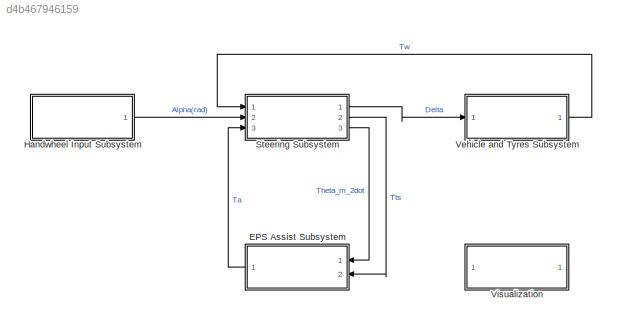
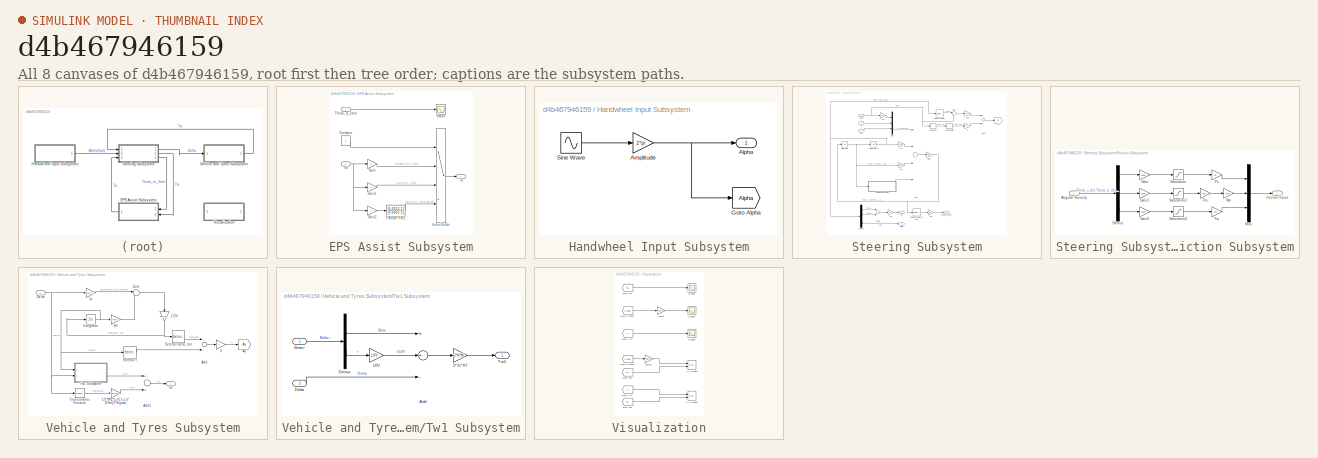
[diagram: thumbnail index - all 8 canvases of the model, root first then tree order]
MODEL slx_d4b467946159
KIND model
BLOCK [SubSystem] EPS Assist Subsystem
  Ports = [2, 1]
  RequestExecContextInheritance = off
BLOCK [Constant] EPS Assist Subsystem/Constant
  Value = 3
BLOCK [Gain] EPS Assist Subsystem/Gain
  Gain = 0
  OutDataTypeStr = Inherit: Inherit via internal rule
  ParamDataTypeStr = Inherit: Inherit via internal rule
  SaturateOnIntegerOverflow = off
BLOCK [Gain] EPS Assist Subsystem/Gain1
  Gain = 3
  OutDataTypeStr = Inherit: Inherit via internal rule
  ParamDataTypeStr = Inherit: Inherit via internal rule
  SaturateOnIntegerOverflow = off
BLOCK [Gain] EPS Assist Subsystem/Gain2
  Gain = 3
  OutDataTypeStr = Inherit: Inherit via internal rule
  ParamDataTypeStr = Inherit: Inherit via internal rule
  SaturateOnIntegerOverflow = off
BLOCK [MultiPortSwitch] EPS Assist Subsystem/Index Vector
  InputSameDT = off
  Ports = [4, 1]
  SaturateOnIntegerOverflow = off
BLOCK [Scope] EPS Assist Subsystem/Scope
  Floating = off
  NumInputPorts = 1
  Ports = [1]
  ShowLegends = off
BLOCK [Outport] EPS Assist Subsystem/Ta
  IconDisplay = Port number
BLOCK [Inport] EPS Assist Subsystem/Theta_m_2dot
  IconDisplay = Port number
BLOCK [TransferFcn] EPS Assist Subsystem/Transfer Fcn1
  Denominator = [0.0061 1]
  Numerator = [0.0255 1]
BLOCK [Inport] EPS Assist Subsystem/Tts
  IconDisplay = Port number
  Port = 2
BLOCK [SubSystem] Handwheel Input Subsystem
  Ports = [0, 1]
  RequestExecContextInheritance = off
BLOCK [Outport] Handwheel Input Subsystem/Alpha
  IconDisplay = Port number
BLOCK [Gain] Handwheel Input Subsystem/Amplitude
  Gain = 2*pi
  OutDataTypeStr = Inherit: Inherit via internal rule
  ParamDataTypeStr = Inherit: Inherit via internal rule
  SaturateOnIntegerOverflow = off
BLOCK [Goto] Handwheel Input Subsystem/Goto Alpha
  GotoTag = Alpha
  TagVisibility = global
BLOCK [Sin] Handwheel Input Subsystem/Sine Wave
  Ports = [0, 1]
  SampleTime = 0
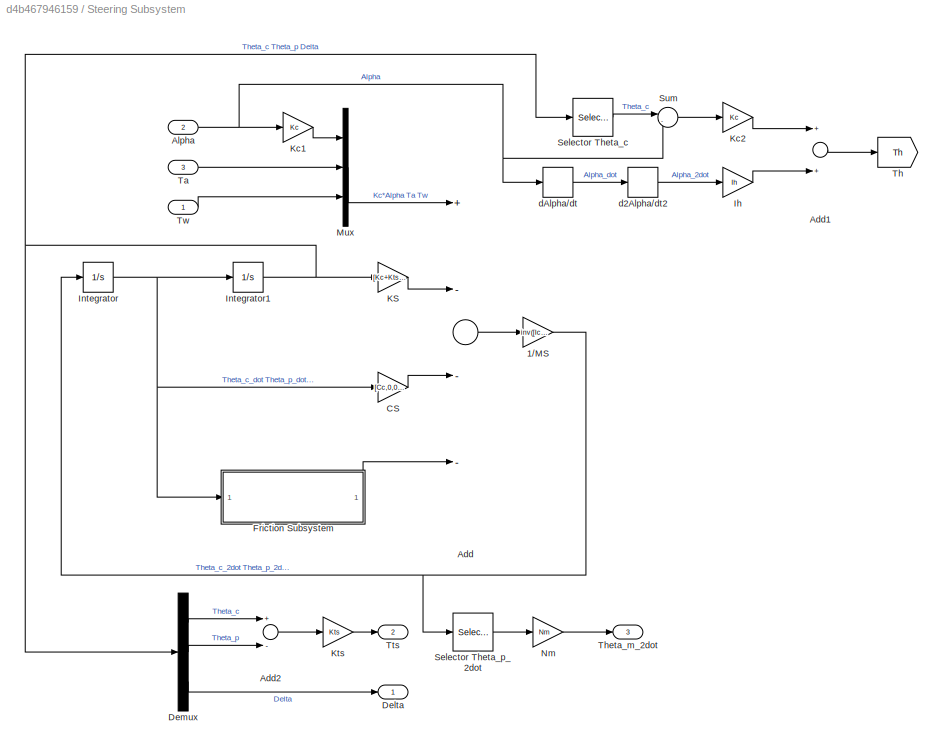
BLOCK [SubSystem] Steering Subsystem
  Ports = [3, 3]
  RequestExecContextInheritance = off
BLOCK [Gain] Steering Subsystem/1//MS
  Gain = inv([Ic,0,0;0,Nm^2*Im,0;0,0,Iw])
  Multiplication = Matrix(K*u)
  OutDataTypeStr = Inherit: Inherit via internal rule
  ParamDataTypeStr = Inherit: Inherit via internal rule
  SaturateOnIntegerOverflow = off
BLOCK [Sum] Steering Subsystem/Add
  InputSameDT = off
  Inputs = +---
  OutDataTypeStr = Inherit: Inherit via internal rule
  Ports = [4, 1]
  SaturateOnIntegerOverflow = off
BLOCK [Sum] Steering Subsystem/Add1
  InputSameDT = off
  OutDataTypeStr = Inherit: Inherit via internal rule
  Ports = [2, 1]
  SaturateOnIntegerOverflow = off
BLOCK [Sum] Steering Subsystem/Add2
  InputSameDT = off
  Inputs = +-
  OutDataTypeStr = Inherit: Inherit via internal rule
  Ports = [2, 1]
  SaturateOnIntegerOverflow = off
BLOCK [Inport] Steering Subsystem/Alpha
  IconDisplay = Port number
  Port = 2
BLOCK [Gain] Steering Subsystem/CS
  Gain = [Cc,0,0;0,Nm^2*Cm,0;0,0,Cw]
  Multiplication = Matrix(K*u)
  OutDataTypeStr = Inherit: Inherit via internal rule
  ParamDataTypeStr = Inherit: Inherit via internal rule
  SaturateOnIntegerOverflow = off
BLOCK [Outport] Steering Subsystem/Delta
  IconDisplay = Port number
BLOCK [Demux] Steering Subsystem/Demux
  DisplayOption = bar
  Outputs = 3
  Ports = [1, 3]
BLOCK [SubSystem] Steering Subsystem/Friction Subsystem
  Ports = [1, 1]
  RequestExecContextInheritance = off
BLOCK [Inport] Steering Subsystem/Friction Subsystem/Angular Velocity
  IconDisplay = Port number
BLOCK [Demux] Steering Subsystem/Friction Subsystem/Demux
  DisplayOption = bar
  Outputs = 3
  Ports = [1, 3]
BLOCK [Gain] Steering Subsystem/Friction Subsystem/Fc
  Gain = Fc
  OutDataTypeStr = Inherit: Inherit via internal rule
  ParamDataTypeStr = Inherit: Inherit via internal rule
  SaturateOnIntegerOverflow = off
BLOCK [Gain] Steering Subsystem/Friction Subsystem/Fm
  Gain = Fm
  OutDataTypeStr = Inherit: Inherit via internal rule
  ParamDataTypeStr = Inherit: Inherit via internal rule
  SaturateOnIntegerOverflow = off
BLOCK [Outport] Steering Subsystem/Friction Subsystem/Friction Force
  IconDisplay = Port number
BLOCK [Gain] Steering Subsystem/Friction Subsystem/Fw
  Gain = Fw
  OutDataTypeStr = Inherit: Inherit via internal rule
  ParamDataTypeStr = Inherit: Inherit via internal rule
  SaturateOnIntegerOverflow = off
BLOCK [Gain] Steering Subsystem/Friction Subsystem/Gain
  Gain = 1000
  OutDataTypeStr = Inherit: Inherit via internal rule
  ParamDataTypeStr = Inherit: Inherit via internal rule
  SaturateOnIntegerOverflow = off
BLOCK [Gain] Steering Subsystem/Friction Subsystem/Gain1
  Gain = 1000
  OutDataTypeStr = Inherit: Inherit via internal rule
  ParamDataTypeStr = Inherit: Inherit via internal rule
  SaturateOnIntegerOverflow = off
BLOCK [Gain] Steering Subsystem/Friction Subsystem/Gain2
  Gain = 1000
  OutDataTypeStr = Inherit: Inherit via internal rule
  ParamDataTypeStr = Inherit: Inherit via internal rule
  SaturateOnIntegerOverflow = off
BLOCK [Mux] Steering Subsystem/Friction Subsystem/Mux
  DisplayOption = bar
  Inputs = 3
  Ports = [3, 1]
BLOCK [Gain] Steering Subsystem/Friction Subsystem/Nm
  Gain = Nm
  OutDataTypeStr = Inherit: Inherit via internal rule
  ParamDataTypeStr = Inherit: Inherit via internal rule
  SaturateOnIntegerOverflow = off
BLOCK [Saturate] Steering Subsystem/Friction Subsystem/Saturation
  InputPortMap = u0
  LowerLimit = -1
  Ports = [1, 1]
  UpperLimit = 1
BLOCK [Saturate] Steering Subsystem/Friction Subsystem/Saturation1
  InputPortMap = u0
  LowerLimit = -1
  Ports = [1, 1]
  UpperLimit = 1
BLOCK [Saturate] Steering Subsystem/Friction Subsystem/Saturation2
  InputPortMap = u0
  LowerLimit = -1
  Ports = [1, 1]
  UpperLimit = 1
BLOCK [Gain] Steering Subsystem/Ih
  Gain = Ih
  OutDataTypeStr = Inherit: Inherit via internal rule
  ParamDataTypeStr = Inherit: Inherit via internal rule
  SaturateOnIntegerOverflow = off
BLOCK [Integrator] Steering Subsystem/Integrator
  Ports = [1, 1]
BLOCK [Integrator] Steering Subsystem/Integrator1
  Ports = [1, 1]
BLOCK [Gain] Steering Subsystem/KS
  Gain = [Kc+Kts,-Kts,0;-Kts,Kts+Kg/Ng^2,-Kg/Ng;0,-Kg/Ng,Kg]
  Multiplication = Matrix(K*u)
  OutDataTypeStr = Inherit: Inherit via internal rule
  ParamDataTypeStr = Inherit: Inherit via internal rule
  SaturateOnIntegerOverflow = off
BLOCK [Gain] Steering Subsystem/Kc1
  Gain = Kc
  OutDataTypeStr = Inherit: Inherit via internal rule
  ParamDataTypeStr = Inherit: Inherit via internal rule
  SaturateOnIntegerOverflow = off
BLOCK [Gain] Steering Subsystem/Kc2
  Gain = Kc
  OutDataTypeStr = Inherit: Inherit via internal rule
  ParamDataTypeStr = Inherit: Inherit via internal rule
  SaturateOnIntegerOverflow = off
BLOCK [Gain] Steering Subsystem/Kts
  Gain = Kts
  OutDataTypeStr = Inherit: Inherit via internal rule
  ParamDataTypeStr = Inherit: Inherit via internal rule
  SaturateOnIntegerOverflow = off
BLOCK [Mux] Steering Subsystem/Mux
  DisplayOption = bar
  Inputs = 3
  Ports = [3, 1]
BLOCK [Gain] Steering Subsystem/Nm
  Gain = Nm
  OutDataTypeStr = Inherit: Inherit via internal rule
  ParamDataTypeStr = Inherit: Inherit via internal rule
  SaturateOnIntegerOverflow = off
BLOCK [Selector] Steering Subsystem/Selector Theta_c
  Indices = [1]
  InputPortWidth = 3
  Ports = [1, 1]
BLOCK [Selector] Steering Subsystem/Selector Theta_p_2dot
  Indices = [2]
  InputPortWidth = 3
  Ports = [1, 1]
BLOCK [Sum] Steering Subsystem/Sum
  IconShape = round
  InputSameDT = off
  Inputs = |-+
  OutDataTypeStr = Inherit: Inherit via internal rule
  Ports = [2, 1]
  SaturateOnIntegerOverflow = off
BLOCK [Inport] Steering Subsystem/Ta
  IconDisplay = Port number
  Port = 3
BLOCK [Goto] Steering Subsystem/Th
  GotoTag = Th
  TagVisibility = global
BLOCK [Outport] Steering Subsystem/Theta_m_2dot
  IconDisplay = Port number
  Port = 3
BLOCK [Outport] Steering Subsystem/Tts
  IconDisplay = Port number
  Port = 2
BLOCK [Inport] Steering Subsystem/Tw
  IconDisplay = Port number
BLOCK [Derivative] Steering Subsystem/d2Alpha//dt2
BLOCK [Derivative] Steering Subsystem/dAlpha//dt
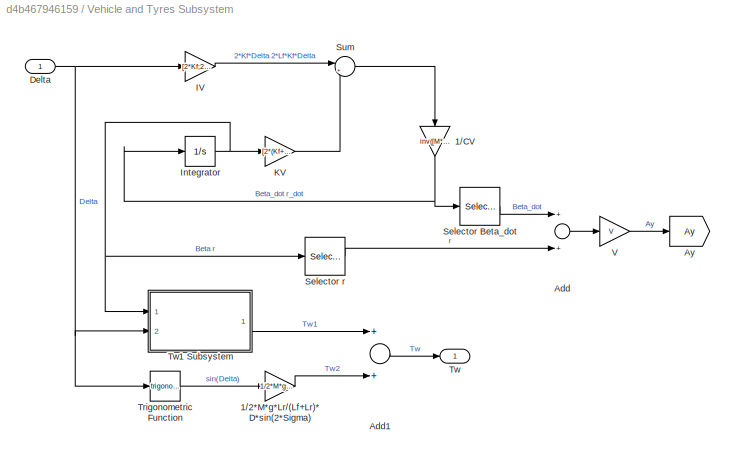
BLOCK [SubSystem] Vehicle and Tyres Subsystem
  Ports = [1, 1]
  RequestExecContextInheritance = off
BLOCK [Gain] Vehicle and Tyres Subsystem/1//2*M*g*Lr//(Lf+Lr)*D*sin(2*Sigma)
  Gain = 1/2*M*g*Lr/(Lf+Lr)*D*sin(2*sigma)
  OutDataTypeStr = Inherit: Inherit via internal rule
  ParamDataTypeStr = Inherit: Inherit via internal rule
  SaturateOnIntegerOverflow = off
BLOCK [Gain] Vehicle and Tyres Subsystem/1//CV
  Gain = inv([M*V,0;0,I])
  Multiplication = Matrix(K*u)
  OutDataTypeStr = Inherit: Inherit via internal rule
  ParamDataTypeStr = Inherit: Inherit via internal rule
  SaturateOnIntegerOverflow = off
BLOCK [Sum] Vehicle and Tyres Subsystem/Add
  InputSameDT = off
  OutDataTypeStr = Inherit: Inherit via internal rule
  Ports = [2, 1]
  SaturateOnIntegerOverflow = off
BLOCK [Sum] Vehicle and Tyres Subsystem/Add1
  InputSameDT = off
  OutDataTypeStr = Inherit: Inherit via internal rule
  Ports = [2, 1]
  SaturateOnIntegerOverflow = off
BLOCK [Goto] Vehicle and Tyres Subsystem/Ay
  GotoTag = Ay
  TagVisibility = global
BLOCK [Inport] Vehicle and Tyres Subsystem/Delta
  IconDisplay = Port number
BLOCK [Gain] Vehicle and Tyres Subsystem/IV
  Gain = [2*Kf;2*Lf*Kf]
  Multiplication = Matrix(K*u)
  OutDataTypeStr = Inherit: Inherit via internal rule
  ParamDataTypeStr = Inherit: Inherit via internal rule
  SaturateOnIntegerOverflow = off
BLOCK [Integrator] Vehicle and Tyres Subsystem/Integrator
  Ports = [1, 1]
BLOCK [Gain] Vehicle and Tyres Subsystem/KV
  Gain = [2*(Kf+Kr),M*V+2*(Lf*Kf-Lr*Kr)/V;2*(Lf*Kf-Lr*Kr),2*(Lf^2*Kf+Lr^2*Kr)/V]
  Multiplication = Matrix(K*u)
  OutDataTypeStr = Inherit: Inherit via internal rule
  ParamDataTypeStr = Inherit: Inherit via internal rule
  SaturateOnIntegerOverflow = off
BLOCK [Selector] Vehicle and Tyres Subsystem/Selector Beta_dot
  Indices = [1]
  InputPortWidth = 2
  Ports = [1, 1]
BLOCK [Selector] Vehicle and Tyres Subsystem/Selector r
  Indices = [2]
  InputPortWidth = 2
  Ports = [1, 1]
BLOCK [Sum] Vehicle and Tyres Subsystem/Sum
  IconShape = round
  InputSameDT = off
  Inputs = |+-
  OutDataTypeStr = Inherit: Inherit via internal rule
  Ports = [2, 1]
  SaturateOnIntegerOverflow = off
BLOCK [Trigonometry] Vehicle and Tyres Subsystem/Trigonometric Function
  Ports = [1, 1]
BLOCK [Outport] Vehicle and Tyres Subsystem/Tw
  IconDisplay = Port number
BLOCK [SubSystem] Vehicle and Tyres Subsystem/Tw1 Subsystem
  Ports = [2, 1]
  RequestExecContextInheritance = off
BLOCK [Gain] Vehicle and Tyres Subsystem/Tw1 Subsystem/2*Xi*Kf
  Gain = 2*Xi*Kf
  OutDataTypeStr = Inherit: Inherit via internal rule
  ParamDataTypeStr = Inherit: Inherit via internal rule
  SaturateOnIntegerOverflow = off
BLOCK [Sum] Vehicle and Tyres Subsystem/Tw1 Subsystem/Add
  InputSameDT = off
  Inputs = ++-
  OutDataTypeStr = Inherit: Inherit via internal rule
  Ports = [3, 1]
  SaturateOnIntegerOverflow = off
BLOCK [Inport] Vehicle and Tyres Subsystem/Tw1 Subsystem/Beta r
  IconDisplay = Port number
BLOCK [Inport] Vehicle and Tyres Subsystem/Tw1 Subsystem/Delta
  IconDisplay = Port number
  Port = 2
BLOCK [Demux] Vehicle and Tyres Subsystem/Tw1 Subsystem/Demux
  DisplayOption = bar
  Outputs = 2
  Ports = [1, 2]
BLOCK [Gain] Vehicle and Tyres Subsystem/Tw1 Subsystem/Lf//V
  Gain = Lf/V
  OutDataTypeStr = Inherit: Inherit via internal rule
  ParamDataTypeStr = Inherit: Inherit via internal rule
  SaturateOnIntegerOverflow = off
BLOCK [Outport] Vehicle and Tyres Subsystem/Tw1 Subsystem/Tw1
  IconDisplay = Port number
BLOCK [Gain] Vehicle and Tyres Subsystem/V
  Gain = V
  OutDataTypeStr = Inherit: Inherit via internal rule
  ParamDataTypeStr = Inherit: Inherit via internal rule
  SaturateOnIntegerOverflow = off
BLOCK [SubSystem] Visualization
  Ports = []
  RequestExecContextInheritance = off
BLOCK [Gain] Visualization/180//pi
  Gain = 180/pi
  OutDataTypeStr = Inherit: Inherit via internal rule
  ParamDataTypeStr = Inherit: Inherit via internal rule
  SaturateOnIntegerOverflow = off
BLOCK [Gain] Visualization/180//pi1
  Gain = 180/pi
  OutDataTypeStr = Inherit: Inherit via internal rule
  ParamDataTypeStr = Inherit: Inherit via internal rule
  SaturateOnIntegerOverflow = off
BLOCK [From] Visualization/From Alpha1
  GotoTag = Alpha
  TagVisibility = global
BLOCK [From] Visualization/From Alpha2
  GotoTag = Alpha
  TagVisibility = global
BLOCK [From] Visualization/From Ay1
  GotoTag = Ay
  TagVisibility = global
BLOCK [From] Visualization/From Ay2
  GotoTag = Ay
  TagVisibility = global
BLOCK [From] Visualization/From Th1
  GotoTag = Th
  TagVisibility = global
BLOCK [From] Visualization/From Th2
  GotoTag = Th
  TagVisibility = global
BLOCK [From] Visualization/From Th3
  GotoTag = Th
  TagVisibility = global
BLOCK [Scope] Visualization/Scope
  Floating = off
  LimitDataPoints = off
  NumInputPorts = 1
  Ports = [1]
  SaveName = ScopeData1
  ShowLegends = off
  TimeRange = 10
  YMax = 1.29
  YMin = 1.16
BLOCK [Scope] Visualization/Scope1
  Floating = off
  LimitDataPoints = off
  NumInputPorts = 1
  Ports = [1]
  SaveName = ScopeData2
  ShowLegends = off
  YMax = 250
  YMin = -75
BLOCK [Scope] Visualization/Scope2
  Floating = off
  LimitDataPoints = off
  NumInputPorts = 1
  Ports = [1]
  SaveName = ScopeData3
  ShowLegends = off
  YMax = 3.75
  YMin = 0.5
BLOCK [Reference] Visualization/XY Graph  REF=simulink/Sinks/XY Graph
  Ports = [2]
  SourceBlock = simulink/Sinks/XY Graph
  SourceType = XY scope.
  st = -1
  xmax = 400
  xmin = -400
  ymax = 10
  ymin = -10
BLOCK [Reference] Visualization/XY Graph1  REF=simulink/Sinks/XY Graph
  Ports = [2]
  SourceBlock = simulink/Sinks/XY Graph
  SourceType = XY scope.
  st = -1
  xmax = 6
  xmin = -6
  ymax = 10
  ymin = -10
LINE EPS Assist Subsystem/Constant:1 -> EPS Assist Subsystem/Index Vector:1
LINE EPS Assist Subsystem/Gain1:1 -> EPS Assist Subsystem/Index Vector:3
LINE EPS Assist Subsystem/Gain2:1 -> EPS Assist Subsystem/Transfer Fcn1:1
LINE EPS Assist Subsystem/Gain:1 -> EPS Assist Subsystem/Index Vector:2
LINE EPS Assist Subsystem/Index Vector:1 -> EPS Assist Subsystem/Ta:1
LINE EPS Assist Subsystem/Theta_m_2dot:1 -> EPS Assist Subsystem/Scope:1
LINE EPS Assist Subsystem/Transfer Fcn1:1 -> EPS Assist Subsystem/Index Vector:4
NET EPS Assist Subsystem/Tts:1 -> EPS Assist Subsystem/Gain1:1, EPS Assist Subsystem/Gain2:1, EPS Assist Subsystem/Gain:1
LINE EPS Assist Subsystem:1 -> Steering Subsystem:3
NET Handwheel Input Subsystem/Amplitude:1 -> Handwheel Input Subsystem/Alpha:1, Handwheel Input Subsystem/Goto Alpha:1
LINE Handwheel Input Subsystem/Sine Wave:1 -> Handwheel Input Subsystem/Amplitude:1
LINE Handwheel Input Subsystem:1 -> Steering Subsystem:2
NET Steering Subsystem/1//MS:1 -> Steering Subsystem/Integrator:1, Steering Subsystem/Selector Theta_p_2dot:1
LINE Steering Subsystem/Add1:1 -> Steering Subsystem/Th:1
LINE Steering Subsystem/Add2:1 -> Steering Subsystem/Kts:1
LINE Steering Subsystem/Add:1 -> Steering Subsystem/1//MS:1
NET Steering Subsystem/Alpha:1 -> Steering Subsystem/Kc1:1, Steering Subsystem/Sum:2, Steering Subsystem/dAlpha//dt:1
LINE Steering Subsystem/CS:1 -> Steering Subsystem/Add:3
LINE Steering Subsystem/Demux:1 -> Steering Subsystem/Add2:1
LINE Steering Subsystem/Demux:2 -> Steering Subsystem/Add2:2
LINE Steering Subsystem/Demux:3 -> Steering Subsystem/Delta:1
LINE Steering Subsystem/Friction Subsystem/Angular Velocity:1 -> Steering Subsystem/Friction Subsystem/Demux:1
LINE Steering Subsystem/Friction Subsystem/Demux:1 -> Steering Subsystem/Friction Subsystem/Gain:1
LINE Steering Subsystem/Friction Subsystem/Demux:2 -> Steering Subsystem/Friction Subsystem/Gain1:1
LINE Steering Subsystem/Friction Subsystem/Demux:3 -> Steering Subsystem/Friction Subsystem/Gain2:1
LINE Steering Subsystem/Friction Subsystem/Fc:1 -> Steering Subsystem/Friction Subsystem/Mux:1
LINE Steering Subsystem/Friction Subsystem/Fm:1 -> Steering Subsystem/Friction Subsystem/Nm:1
LINE Steering Subsystem/Friction Subsystem/Fw:1 -> Steering Subsystem/Friction Subsystem/Mux:3
LINE Steering Subsystem/Friction Subsystem/Gain1:1 -> Steering Subsystem/Friction Subsystem/Saturation1:1
LINE Steering Subsystem/Friction Subsystem/Gain2:1 -> Steering Subsystem/Friction Subsystem/Saturation2:1
LINE Steering Subsystem/Friction Subsystem/Gain:1 -> Steering Subsystem/Friction Subsystem/Saturation:1
LINE Steering Subsystem/Friction Subsystem/Mux:1 -> Steering Subsystem/Friction Subsystem/Friction Force:1
LINE Steering Subsystem/Friction Subsystem/Nm:1 -> Steering Subsystem/Friction Subsystem/Mux:2
LINE Steering Subsystem/Friction Subsystem/Saturation1:1 -> Steering Subsystem/Friction Subsystem/Fm:1
LINE Steering Subsystem/Friction Subsystem/Saturation2:1 -> Steering Subsystem/Friction Subsystem/Fw:1
LINE Steering Subsystem/Friction Subsystem/Saturation:1 -> Steering Subsystem/Friction Subsystem/Fc:1
LINE Steering Subsystem/Friction Subsystem:1 -> Steering Subsystem/Add:4
LINE Steering Subsystem/Ih:1 -> Steering Subsystem/Add1:2
NET Steering Subsystem/Integrator1:1 -> Steering Subsystem/Demux:1, Steering Subsystem/KS:1, Steering Subsystem/Selector Theta_c:1
NET Steering Subsystem/Integrator:1 -> Steering Subsystem/CS:1, Steering Subsystem/Friction Subsystem:1, Steering Subsystem/Integrator1:1
LINE Steering Subsystem/KS:1 -> Steering Subsystem/Add:2
LINE Steering Subsystem/Kc1:1 -> Steering Subsystem/Mux:1
LINE Steering Subsystem/Kc2:1 -> Steering Subsystem/Add1:1
LINE Steering Subsystem/Kts:1 -> Steering Subsystem/Tts:1
LINE Steering Subsystem/Mux:1 -> Steering Subsystem/Add:1
LINE Steering Subsystem/Nm:1 -> Steering Subsystem/Theta_m_2dot:1
LINE Steering Subsystem/Selector Theta_c:1 -> Steering Subsystem/Sum:1
LINE Steering Subsystem/Selector Theta_p_2dot:1 -> Steering Subsystem/Nm:1
LINE Steering Subsystem/Sum:1 -> Steering Subsystem/Kc2:1
LINE Steering Subsystem/Ta:1 -> Steering Subsystem/Mux:2
LINE Steering Subsystem/Tw:1 -> Steering Subsystem/Mux:3
LINE Steering Subsystem/d2Alpha//dt2:1 -> Steering Subsystem/Ih:1
LINE Steering Subsystem/dAlpha//dt:1 -> Steering Subsystem/d2Alpha//dt2:1
LINE Steering Subsystem:1 -> Vehicle and Tyres Subsystem:1
LINE Steering Subsystem:2 -> EPS Assist Subsystem:2
LINE Steering Subsystem:3 -> EPS Assist Subsystem:1
LINE Vehicle and Tyres Subsystem/1//2*M*g*Lr//(Lf+Lr)*D*sin(2*Sigma):1 -> Vehicle and Tyres Subsystem/Add1:2
NET Vehicle and Tyres Subsystem/1//CV:1 -> Vehicle and Tyres Subsystem/Integrator:1, Vehicle and Tyres Subsystem/Selector Beta_dot:1
LINE Vehicle and Tyres Subsystem/Add1:1 -> Vehicle and Tyres Subsystem/Tw:1
LINE Vehicle and Tyres Subsystem/Add:1 -> Vehicle and Tyres Subsystem/V:1
NET Vehicle and Tyres Subsystem/Delta:1 -> Vehicle and Tyres Subsystem/IV:1, Vehicle and Tyres Subsystem/Trigonometric Function:1, Vehicle and Tyres Subsystem/Tw1 Subsystem:2
LINE Vehicle and Tyres Subsystem/IV:1 -> Vehicle and Tyres Subsystem/Sum:1
NET Vehicle and Tyres Subsystem/Integrator:1 -> Vehicle and Tyres Subsystem/KV:1, Vehicle and Tyres Subsystem/Selector r:1, Vehicle and Tyres Subsystem/Tw1 Subsystem:1
LINE Vehicle and Tyres Subsystem/KV:1 -> Vehicle and Tyres Subsystem/Sum:2
LINE Vehicle and Tyres Subsystem/Selector Beta_dot:1 -> Vehicle and Tyres Subsystem/Add:1
LINE Vehicle and Tyres Subsystem/Selector r:1 -> Vehicle and Tyres Subsystem/Add:2
LINE Vehicle and Tyres Subsystem/Sum:1 -> Vehicle and Tyres Subsystem/1//CV:1
LINE Vehicle and Tyres Subsystem/Trigonometric Function:1 -> Vehicle and Tyres Subsystem/1//2*M*g*Lr//(Lf+Lr)*D*sin(2*Sigma):1
LINE Vehicle and Tyres Subsystem/Tw1 Subsystem/2*Xi*Kf:1 -> Vehicle and Tyres Subsystem/Tw1 Subsystem/Tw1:1
LINE Vehicle and Tyres Subsystem/Tw1 Subsystem/Add:1 -> Vehicle and Tyres Subsystem/Tw1 Subsystem/2*Xi*Kf:1
LINE Vehicle and Tyres Subsystem/Tw1 Subsystem/Beta r:1 -> Vehicle and Tyres Subsystem/Tw1 Subsystem/Demux:1
LINE Vehicle and Tyres Subsystem/Tw1 Subsystem/Delta:1 -> Vehicle and Tyres Subsystem/Tw1 Subsystem/Add:3
LINE Vehicle and Tyres Subsystem/Tw1 Subsystem/Demux:1 -> Vehicle and Tyres Subsystem/Tw1 Subsystem/Add:1
LINE Vehicle and Tyres Subsystem/Tw1 Subsystem/Demux:2 -> Vehicle and Tyres Subsystem/Tw1 Subsystem/Lf//V:1
LINE Vehicle and Tyres Subsystem/Tw1 Subsystem/Lf//V:1 -> Vehicle and Tyres Subsystem/Tw1 Subsystem/Add:2
LINE Vehicle and Tyres Subsystem/Tw1 Subsystem:1 -> Vehicle and Tyres Subsystem/Add1:1
LINE Vehicle and Tyres Subsystem/V:1 -> Vehicle and Tyres Subsystem/Ay:1
LINE Vehicle and Tyres Subsystem:1 -> Steering Subsystem:1
LINE Visualization/180//pi1:1 -> Visualization/XY Graph:1
LINE Visualization/180//pi:1 -> Visualization/Scope1:1
LINE Visualization/From Alpha1:1 -> Visualization/180//pi:1
LINE Visualization/From Alpha2:1 -> Visualization/180//pi1:1
LINE Visualization/From Ay1:1 -> Visualization/Scope2:1
LINE Visualization/From Ay2:1 -> Visualization/XY Graph1:1
LINE Visualization/From Th1:1 -> Visualization/Scope:1
LINE Visualization/From Th2:1 -> Visualization/XY Graph:2
LINE Visualization/From Th3:1 -> Visualization/XY Graph1:2
note: NET lines group one-source signal fan-out (src -> all destinations, sorted); 1:1 wires keep LINE
